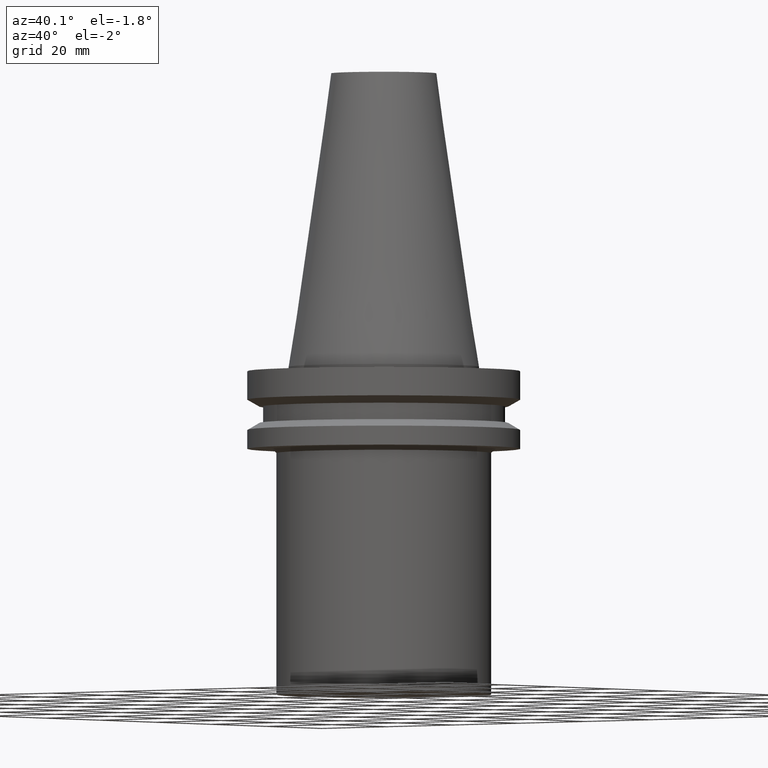
[diagram: clean part render]
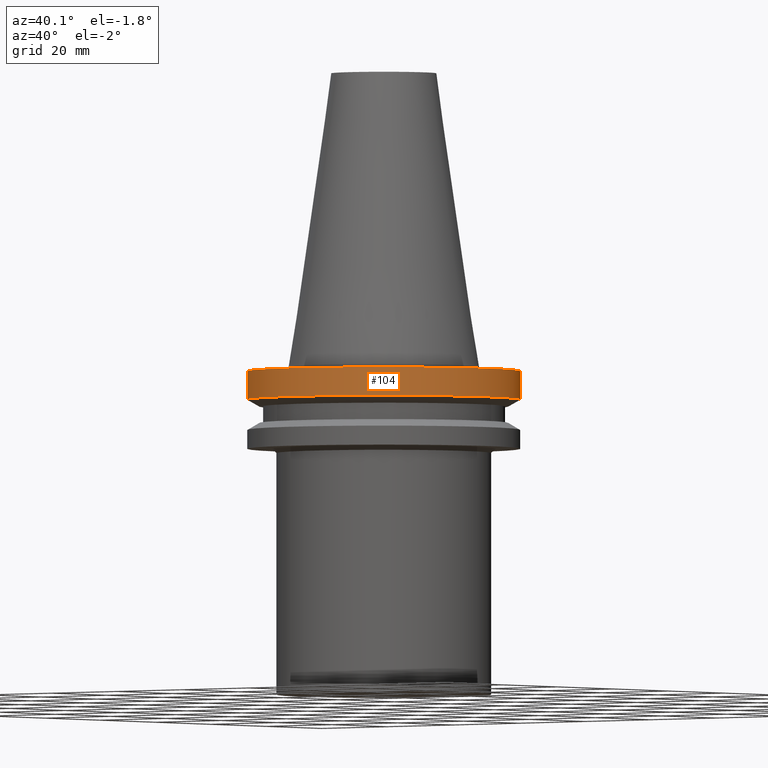
[diagram: same view with one face highlighted and labeled with its STEP entity id]
A machine part, auxiliary view. The second image highlights one B-rep face of the part: STEP entity #104.
In plain terms, the highlighted cylindrical surface (bore or boss wall) has radius 31.75 mm, axis along (0, 0, -1).
Its self-contained STEP definition (entity closure, byte-faithful):
#69=EDGE_CURVE('Unnamed[1]',#170,#170,#171,.T.);
#104=ADVANCED_FACE('Unnamed[1]',(#223,#224),#225,.T.);
#114=EDGE_CURVE('Unnamed[1]',#239,#239,#240,.T.);
#170=VERTEX_POINT('',#301);
#171=CIRCLE('',#302,31.7499999999999);
#223=FACE_BOUND('',#366,.T.);
#224=FACE_BOUND('',#367,.T.);
#225=CYLINDRICAL_SURFACE('',#368,31.7499999999999);
#239=VERTEX_POINT('',#386);
#240=CIRCLE('',#387,31.7499999999999);
#301=CARTESIAN_POINT('',(4.64971240706304E-016,31.7499999999999,-7.59355662432687));
#302=AXIS2_PLACEMENT_3D('',#444,#445,#446);
#366=EDGE_LOOP('',(#502));
#367=EDGE_LOOP('',(#503));
#368=AXIS2_PLACEMENT_3D('',#504,#505,#506);
#386=CARTESIAN_POINT('',(6.12323399572837E-017,31.7499999999999,-0.999999999998632));
#387=AXIS2_PLACEMENT_3D('',#521,#522,#523);
#444=CARTESIAN_POINT('',(4.64971240706306E-016,1.99940624841761E-015,-7.59355662432691));
#445=DIRECTION('',(6.12323399573677E-017,8.51860445124986E-016,-1.0));
#446=DIRECTION('',(-5.69885611028992E-032,1.0,8.51860445124986E-016));
#502=ORIENTED_EDGE('',*,*,#69,.F.);
#503=ORIENTED_EDGE('',*,*,#114,.T.);
#504=CARTESIAN_POINT('',(2.63101790331796E-016,-8.08988792061017E-016,-4.29677831216279));
#505=DIRECTION('',(6.12323399573677E-017,8.51860445124986E-016,-1.0));
#506=DIRECTION('',(-5.69885611028992E-032,1.0,8.51860445124986E-016));
#521=CARTESIAN_POINT('',(6.12323399572859E-017,-3.61738383253964E-015,-0.999999999998664));
#522=DIRECTION('',(6.12323399573677E-017,8.51860445124986E-016,-1.0));
#523=DIRECTION('',(-5.69885611028992E-032,1.0,8.51860445124986E-016));